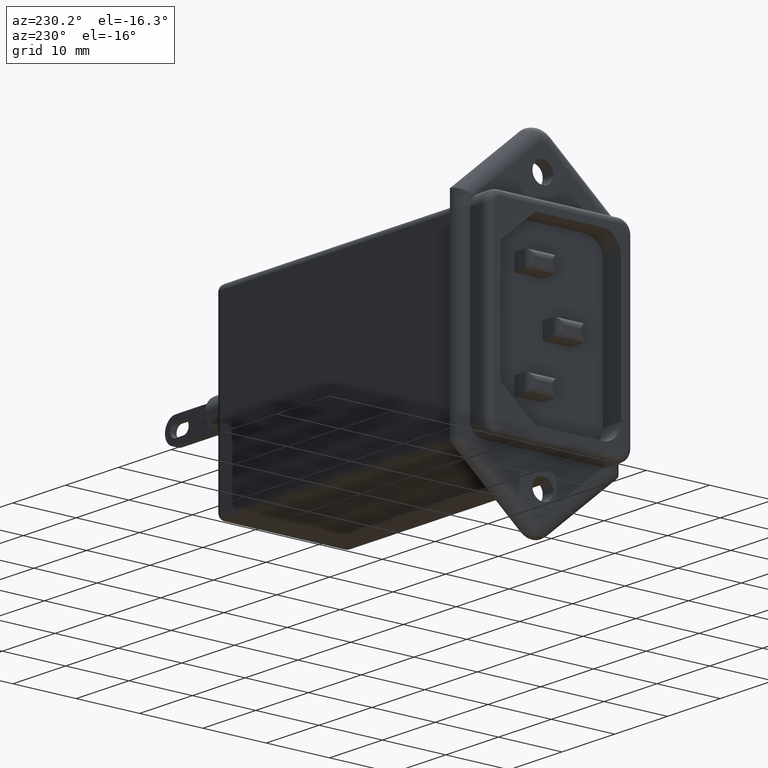
[diagram: clean part render]
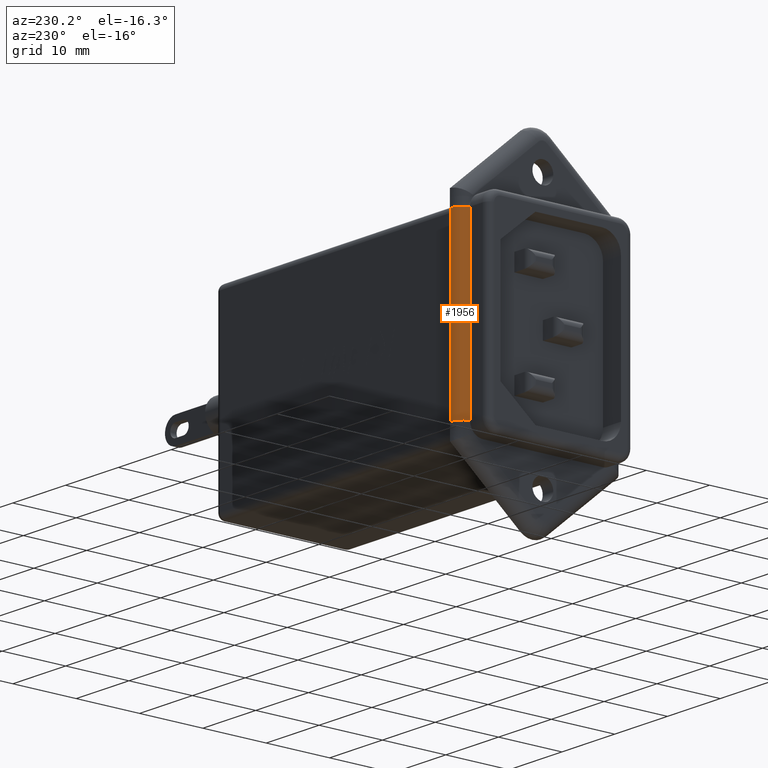
[diagram: same view with one face highlighted and labeled with its STEP entity id]
A machine part, auxiliary view. The second image highlights one B-rep face of the part: STEP entity #1956.
In plain terms, the highlighted cylindrical surface (edge-blend (fillet) strip) has radius 2 mm, axis along (0, -0, 1).
Its self-contained STEP definition (entity closure, byte-faithful):
#184 = DIRECTION ( 'NONE',  ( -5.598795943944339900E-017, -2.168404344971009400E-016, -1.000000000000000000 ) ) ;
#226 = EDGE_CURVE ( 'NONE', #367, #7549, #1220, .T. ) ;
#302 = VERTEX_POINT ( 'NONE', #1830 ) ;
#367 = VERTEX_POINT ( 'NONE', #761 ) ;
#527 = CARTESIAN_POINT ( 'NONE',  ( 5.336491673103711100, -0.4999999999999938400, 29.00000000000000000 ) ) ;
#556 = VERTEX_POINT ( 'NONE', #3069 ) ;
#761 = CARTESIAN_POINT ( 'NONE',  ( 3.400000000000000400, -3.551475717527324800E-015, 29.00000000000000000 ) ) ;
#1220 = LINE ( 'NONE', #1765, #6965 ) ;
#1388 = AXIS2_PLACEMENT_3D ( 'NONE', #6211, #184, #2787 ) ;
#1558 = VECTOR ( 'NONE', #8094, 1000.000000000000000 ) ;
#1765 = CARTESIAN_POINT ( 'NONE',  ( 3.400000000000000400, 0.0000000000000000000, 0.0000000000000000000 ) ) ;
#1830 = CARTESIAN_POINT ( 'NONE',  ( 5.336491673103711100, 1.500000000000006200, 29.00000000000000000 ) ) ;
#1956 = ADVANCED_FACE ( 'NONE', ( #2624 ), #4281, .T. ) ;
#2004 = DIRECTION ( 'NONE',  ( 0.0000000000000000000, -1.000000000000000000, 0.0000000000000000000 ) ) ;
#2134 = EDGE_LOOP ( 'NONE', ( #2727, #5955, #4722, #3620 ) ) ;
#2624 = FACE_OUTER_BOUND ( 'NONE', #2134, .T. ) ;
#2643 = CARTESIAN_POINT ( 'NONE',  ( 5.336491673103707500, -0.5000000000000012200, -7.500000000000000900 ) ) ;
#2727 = ORIENTED_EDGE ( 'NONE', *, *, #6080, .T. ) ;
#2787 = DIRECTION ( 'NONE',  ( 0.0000000000000000000, 1.000000000000000000, -2.168404344971008900E-016 ) ) ;
#3069 = CARTESIAN_POINT ( 'NONE',  ( 5.336491673103707500, 1.500000000000000700, 1.999999999999998700 ) ) ;
#3211 = DIRECTION ( 'NONE',  ( 8.673617379884035500E-016, -1.000000000000000000, 0.0000000000000000000 ) ) ;
#3363 = CARTESIAN_POINT ( 'NONE',  ( 3.400000000000000400, 0.0000000000000000000, 1.999999999999999100 ) ) ;
#3620 = ORIENTED_EDGE ( 'NONE', *, *, #226, .F. ) ;
#3952 = DIRECTION ( 'NONE',  ( 0.0000000000000000000, 1.224646799147353500E-016, -1.000000000000000000 ) ) ;
#4281 = CYLINDRICAL_SURFACE ( 'NONE', #8258, 2.000000000000000000 ) ;
#4700 = AXIS2_PLACEMENT_3D ( 'NONE', #527, #5204, #3211 ) ;
#4722 = ORIENTED_EDGE ( 'NONE', *, *, #8442, .F. ) ;
#5031 = CIRCLE ( 'NONE', #1388, 2.000000000000000000 ) ;
#5204 = DIRECTION ( 'NONE',  ( -5.248871197447725900E-017, -2.032879073410320300E-016, -1.000000000000000000 ) ) ;
#5444 = CARTESIAN_POINT ( 'NONE',  ( 5.336491673103707500, 1.500000000000000200, -0.5000000000000062200 ) ) ;
#5628 = EDGE_CURVE ( 'NONE', #556, #302, #5953, .T. ) ;
#5953 = LINE ( 'NONE', #5444, #1558 ) ;
#5955 = ORIENTED_EDGE ( 'NONE', *, *, #5628, .F. ) ;
#6080 = EDGE_CURVE ( 'NONE', #367, #302, #8536, .T. ) ;
#6211 = CARTESIAN_POINT ( 'NONE',  ( 5.336491673103708400, -0.4999999999999992800, 1.999999999999999100 ) ) ;
#6697 = DIRECTION ( 'NONE',  ( 0.0000000000000000000, -1.224646799147353500E-016, 1.000000000000000000 ) ) ;
#6965 = VECTOR ( 'NONE', #3952, 1000.000000000000000 ) ;
#7549 = VERTEX_POINT ( 'NONE', #3363 ) ;
#8094 = DIRECTION ( 'NONE',  ( -0.0000000000000000000, 2.032879073410320300E-016, 1.000000000000000000 ) ) ;
#8258 = AXIS2_PLACEMENT_3D ( 'NONE', #2643, #6697, #2004 ) ;
#8442 = EDGE_CURVE ( 'NONE', #7549, #556, #5031, .T. ) ;
#8536 = CIRCLE ( 'NONE', #4700, 2.000000000000000000 ) ;